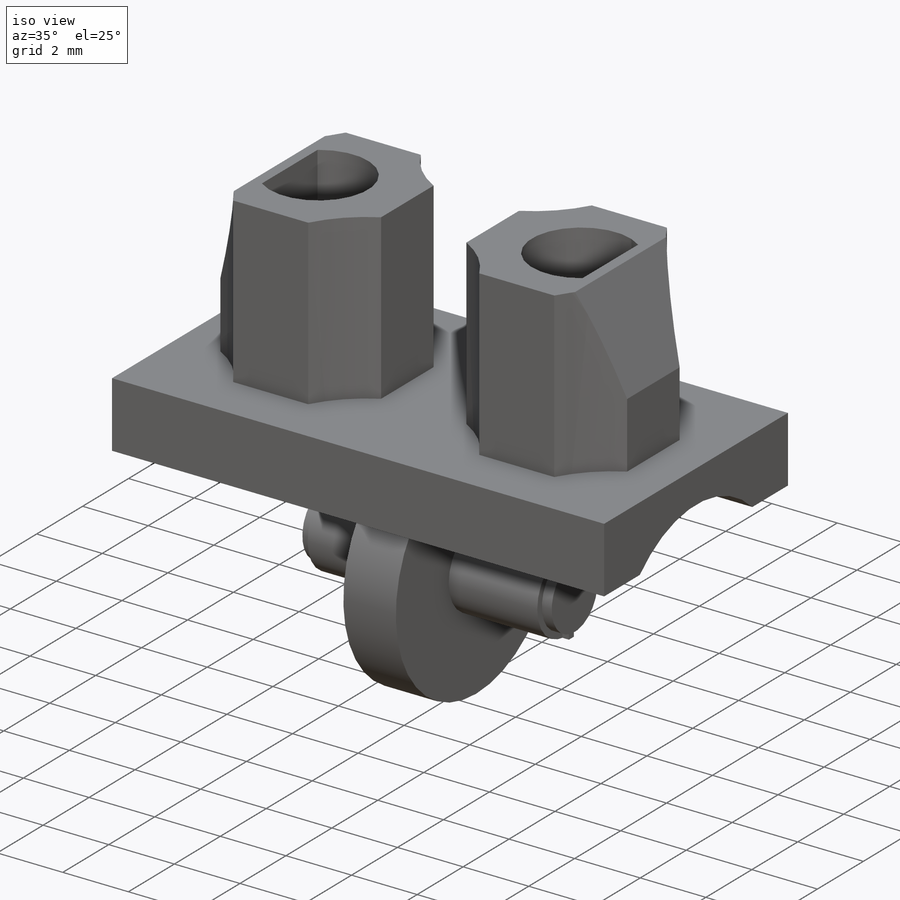
[diagram: iso view]
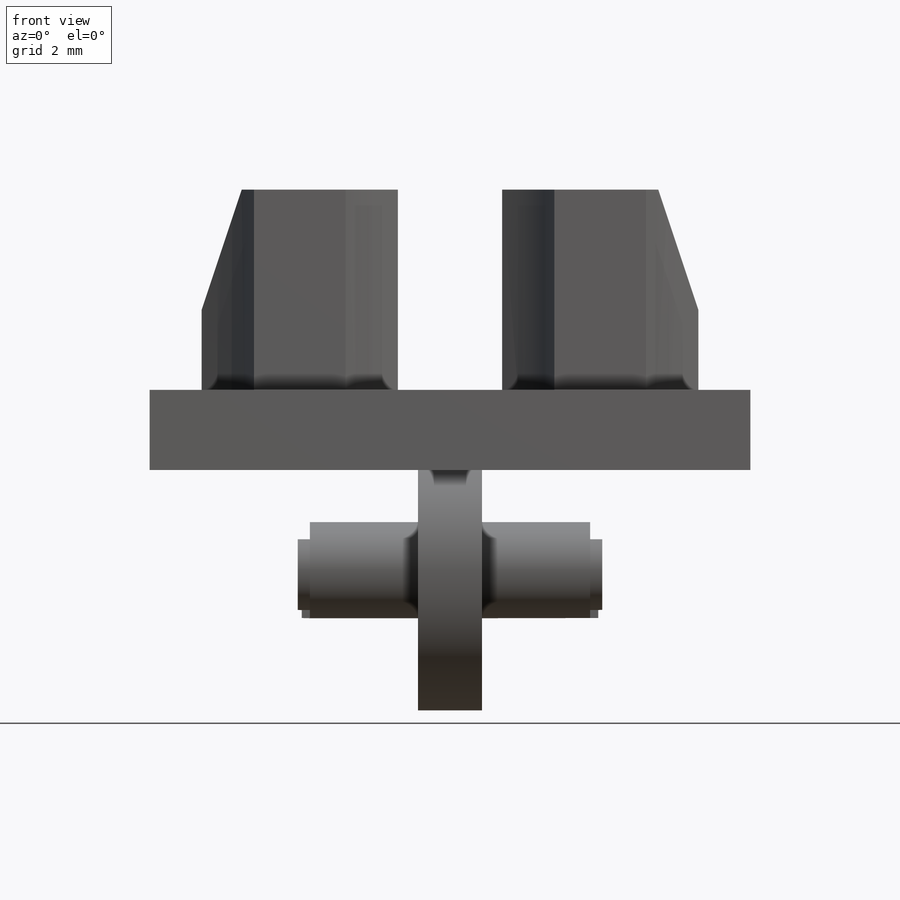
[diagram: front view]
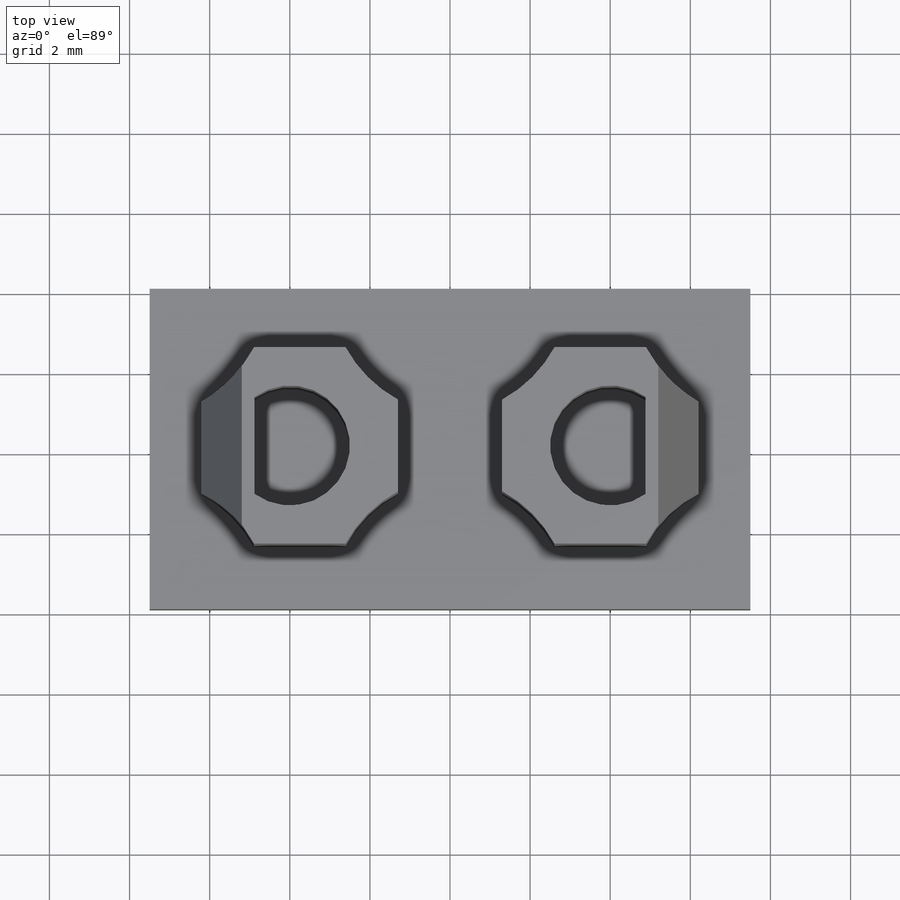
[diagram: top view]
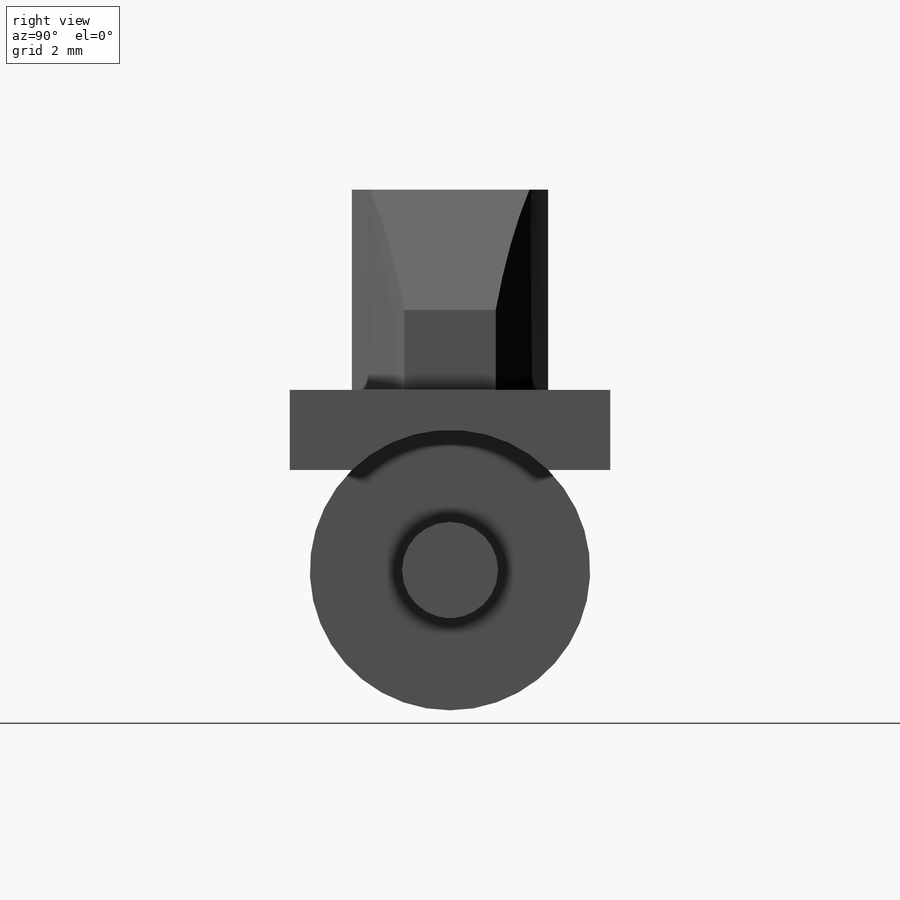
[diagram: right view]
SOLIDWORKS PART (.sldprt)
format: sldprt  version: not decoded by parser v0  size: 599,552 bytes
history: native  units: mm
features: sketch x8, extrude x6, cut_extrude x2, mirror x2, material x1, plane x1 + 1 further entry (+10 scaffold rows collapsed)
feature tree (31):
  scaffold x10  (default folders/planes/origin — collapsed)
  material  "Material <not specified>"
  "Annotations"  RD1=4mm
  sketch  "Sketch1"  dims[c1.D1=7.0mm c1.D2=2.0mm c1.D3=8.0mm c1.D4=4.5mm c1.D5=1.5mm c1.D6=~3.94949mm c2.D3=4.0mm c2.D5=4.0mm c2.D6=~1.55051mm]
  extrude  "Boss-Extrude1"  Depth=7.5mm
  extrude  "Boss-Extrude2"  [1 undecoded]
  sketch  "Sketch1<6>"  dims[D1=0.8mm]
  sketch  "Sketch5"  dims[D1=2.4mm]
  extrude  "Boss-Extrude3"  Depth=3.5mm
  sketch  "Sketch7"  dims[c1.D1=~2.758778mm c1.D4=6.5mm c1.D6=6.5mm c1.D7=6.5mm c1.D8=6.5mm c1.D12=6.5mm c2.D1=4.9mm c2.D2=8.0mm c2.D3=8.0mm c2.D5=8.0mm c2.D9=4.9mm c2.D10=2.45mm c2.D11=2.45mm c2.D12=~2.706012mm c2.D13=~0.932824mm c3.D12=1.55mm c3.D13=~1.877174mm c4.D12=~5.293988mm c4.D9=2.45mm c5.D12=~4.212937mm c5.D2=4.0mm c6.D12=4.0mm c6.D13=~3.787063mm c6.D5=7.5mm c6.D1=2.45mm c6.D2=2.45mm c6.D3=2.45mm c7.D5=2.45mm c7.D9=~1.506156mm c7.D10=~1.625318mm c8.D9=8.0mm c8.D10=8.0mm c8.D11=8.0mm c8.D12=8.0mm c8.D13=3.75mm c9.D9=4.0mm c9.D10=4.0mm c9.D11=4.0mm c9.D13=4.0mm c9.D14=4.0mm c9.D15=4.0mm c9.D12=4.0mm c9.D16=4.0mm c9.D5=~49.764092deg c10.D12=~174.880492deg]
  extrude  "Boss-Extrude4"  Depth=5mm
  sketch  "Sketch8"  dims[c1.D1=3.0mm c1.D2=1.5mm c2.D1=1.0mm c2.D2=1.0mm c2.D3=3.75mm c3.D2=~4.081319mm c3.D4=~43.15239deg c4.D4=4.75mm c4.D2=~4.276404mm c5.D4=~43.15239deg c5.D2=3.75mm c5.D3=4.0mm c5.D1=4.0mm]
  cut_extrude  "Cut-Extrude2"  Depth=5mm
  sketch  "Sketch9"  dims[D1=1.0mm D2=3.0mm]
  cut_extrude  "Cut-Extrude3"  [1 undecoded]
  mirror  "Mirror2"
  sketch  "Sketch10"  dims[D1=~1.055819mm]
  extrude  "Boss-Extrude5"  Depth=0.3mm
  sketch  "Sketch12"
  extrude  "Boss-Extrude6"  Depth=1mm
  mirror  "Mirror3"
  plane  "Plane1"  Offset=3.75mm
decode coverage: 13 of 18 modeling features carry decoded parameters; 1 rows unclassified (native names shown)
note: ~ marks probable driven/reference dimensions
note: 2 parameter values undecoded
note: suppression state not decoded; provenance and decode notes live in map.json
